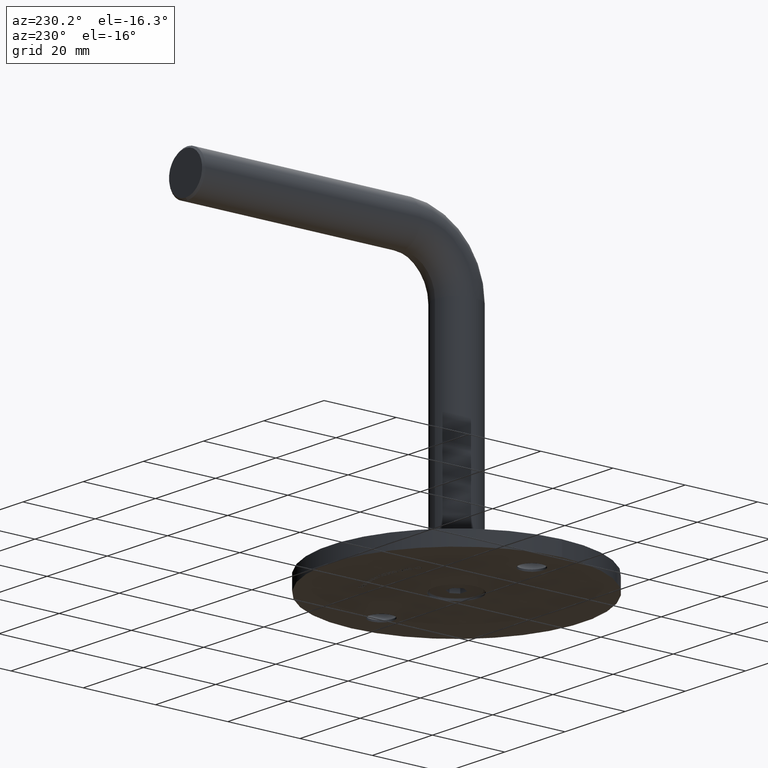
[diagram: clean part render]
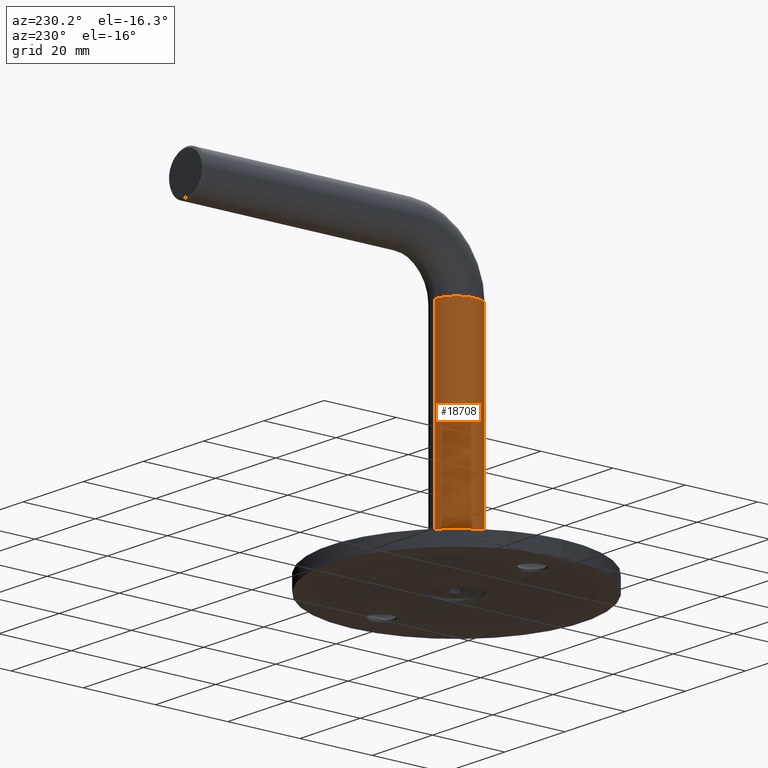
[diagram: same view with one face highlighted and labeled with its STEP entity id]
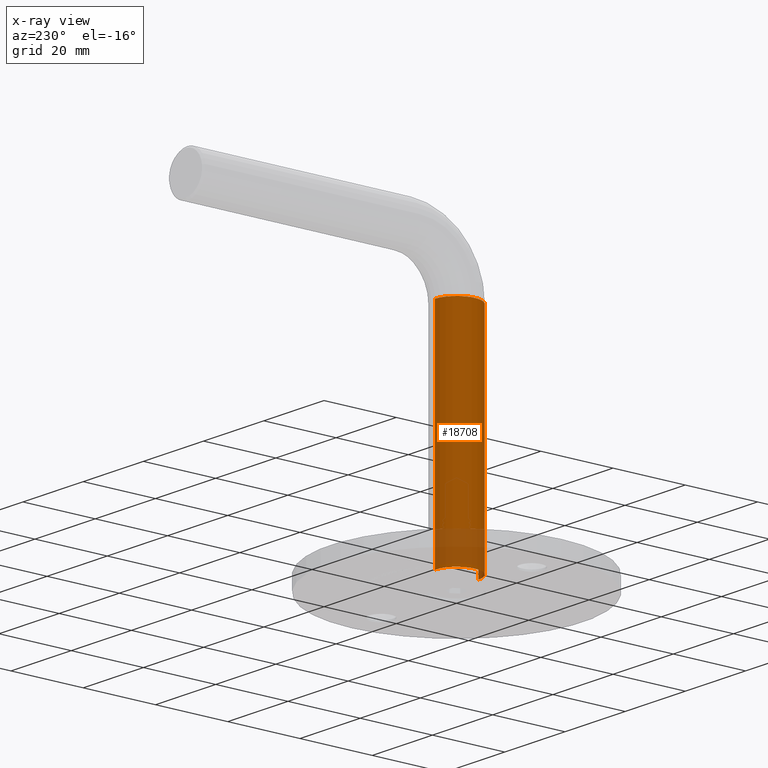
[diagram: x-ray of the same camera — body ghosted, the highlighted face saturated]
A machine part, auxiliary view. The second image highlights one B-rep face of the part: STEP entity #18708.
The next image is the same camera in x-ray: the body ghosted, the highlighted face saturated — about 13% of this face is hidden behind the body in this view.
In plain terms, the highlighted cylindrical surface (edge-blend (fillet) strip) has radius 6 mm, axis along (0, 0, -1).
Its self-contained STEP definition (entity closure, byte-faithful):
#330 = VERTEX_POINT ( 'NONE', #2397 ) ;
#483 = ORIENTED_EDGE ( 'NONE', *, *, #16321, .T. ) ;
#1450 = CARTESIAN_POINT ( 'NONE',  ( 7.347880794884118750E-16, -5.999999999999999112, 0.000000000000000000 ) ) ;
#2289 = VECTOR ( 'NONE', #2913, 1000.000000000000000 ) ;
#2397 = CARTESIAN_POINT ( 'NONE',  ( 0.000000000000000000, 5.999999999999992006, 60.00000000000000000 ) ) ;
#2913 = DIRECTION ( 'NONE',  ( -0.000000000000000000, 1.156482317317871478E-16, -1.000000000000000000 ) ) ;
#4073 = LINE ( 'NONE', #11515, #6145 ) ;
#4165 = DIRECTION ( 'NONE',  ( 0.000000000000000000, 0.000000000000000000, 1.000000000000000000 ) ) ;
#4370 = CARTESIAN_POINT ( 'NONE',  ( 0.000000000000000000, -6.938893903907228378E-15, 60.00000000000000000 ) ) ;
#5703 = FACE_OUTER_BOUND ( 'NONE', #8745, .T. ) ;
#6145 = VECTOR ( 'NONE', #18915, 1000.000000000000000 ) ;
#6288 = EDGE_CURVE ( 'NONE', #9951, #10198, #9601, .T. ) ;
#6764 = AXIS2_PLACEMENT_3D ( 'NONE', #4370, #7201, #15895 ) ;
#7201 = DIRECTION ( 'NONE',  ( -0.000000000000000000, 1.156482317317871478E-16, -1.000000000000000000 ) ) ;
#8356 = ORIENTED_EDGE ( 'NONE', *, *, #17650, .F. ) ;
#8465 = DIRECTION ( 'NONE',  ( 1.000000000000000000, 0.000000000000000000, 0.000000000000000000 ) ) ;
#8563 = AXIS2_PLACEMENT_3D ( 'NONE', #10645, #9071, #13524 ) ;
#8703 = EDGE_CURVE ( 'NONE', #330, #9304, #4073, .T. ) ;
#8745 = EDGE_LOOP ( 'NONE', ( #16538, #8356, #15703, #483 ) ) ;
#8860 = CARTESIAN_POINT ( 'NONE',  ( 7.347880794884118750E-16, -6.000000000000006217, 60.00000000000000000 ) ) ;
#9071 = DIRECTION ( 'NONE',  ( 0.000000000000000000, 0.000000000000000000, 1.000000000000000000 ) ) ;
#9135 = CYLINDRICAL_SURFACE ( 'NONE', #6764, 5.999999999999999112 ) ;
#9304 = VERTEX_POINT ( 'NONE', #9507 ) ;
#9399 = CIRCLE ( 'NONE', #8563, 5.999999999999999112 ) ;
#9507 = CARTESIAN_POINT ( 'NONE',  ( 0.000000000000000000, 6.000000000000000000, 0.000000000000000000 ) ) ;
#9601 = LINE ( 'NONE', #8860, #2289 ) ;
#9951 = VERTEX_POINT ( 'NONE', #17239 ) ;
#10061 = CIRCLE ( 'NONE', #14883, 5.999999999999999112 ) ;
#10198 = VERTEX_POINT ( 'NONE', #1450 ) ;
#10645 = CARTESIAN_POINT ( 'NONE',  ( 0.000000000000000000, 0.000000000000000000, 0.000000000000000000 ) ) ;
#11515 = CARTESIAN_POINT ( 'NONE',  ( 0.000000000000000000, 5.999999999999992006, 60.00000000000000000 ) ) ;
#12870 = CARTESIAN_POINT ( 'NONE',  ( 0.000000000000000000, -6.938893903907228378E-15, 60.00000000000000000 ) ) ;
#13524 = DIRECTION ( 'NONE',  ( 1.000000000000000000, 0.000000000000000000, 0.000000000000000000 ) ) ;
#14883 = AXIS2_PLACEMENT_3D ( 'NONE', #12870, #4165, #8465 ) ;
#15703 = ORIENTED_EDGE ( 'NONE', *, *, #8703, .T. ) ;
#15895 = DIRECTION ( 'NONE',  ( 0.000000000000000000, 1.000000000000000000, 0.000000000000000000 ) ) ;
#16321 = EDGE_CURVE ( 'NONE', #9304, #10198, #9399, .T. ) ;
#16538 = ORIENTED_EDGE ( 'NONE', *, *, #6288, .F. ) ;
#17239 = CARTESIAN_POINT ( 'NONE',  ( 7.347880794884123680E-16, -6.000000000000007105, 60.00000000000000000 ) ) ;
#17650 = EDGE_CURVE ( 'NONE', #330, #9951, #10061, .T. ) ;
#18708 = ADVANCED_FACE ( 'NONE', ( #5703 ), #9135, .T. ) ;
#18915 = DIRECTION ( 'NONE',  ( -0.000000000000000000, 1.156482317317871478E-16, -1.000000000000000000 ) ) ;